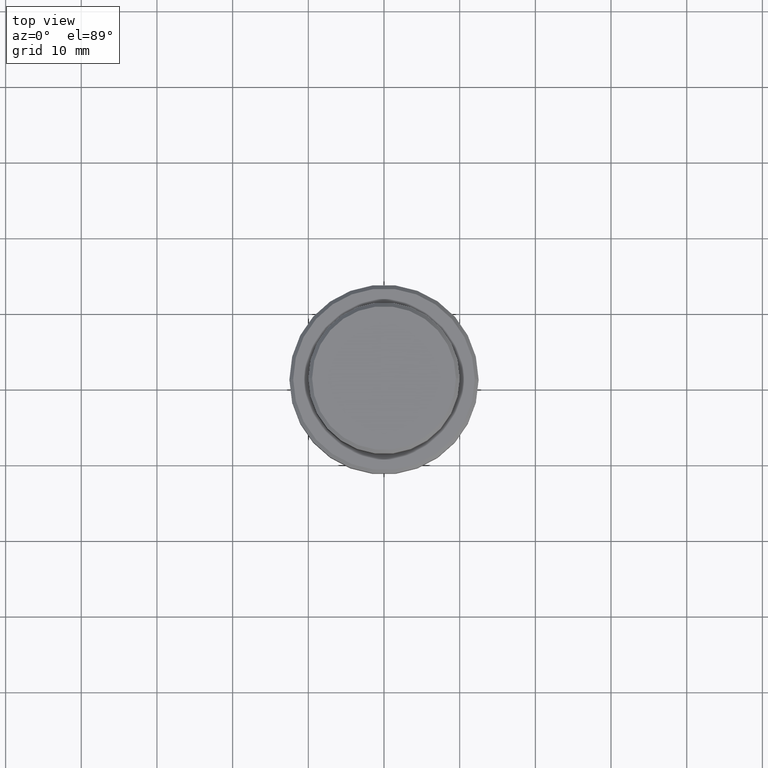
[diagram: clean part render]
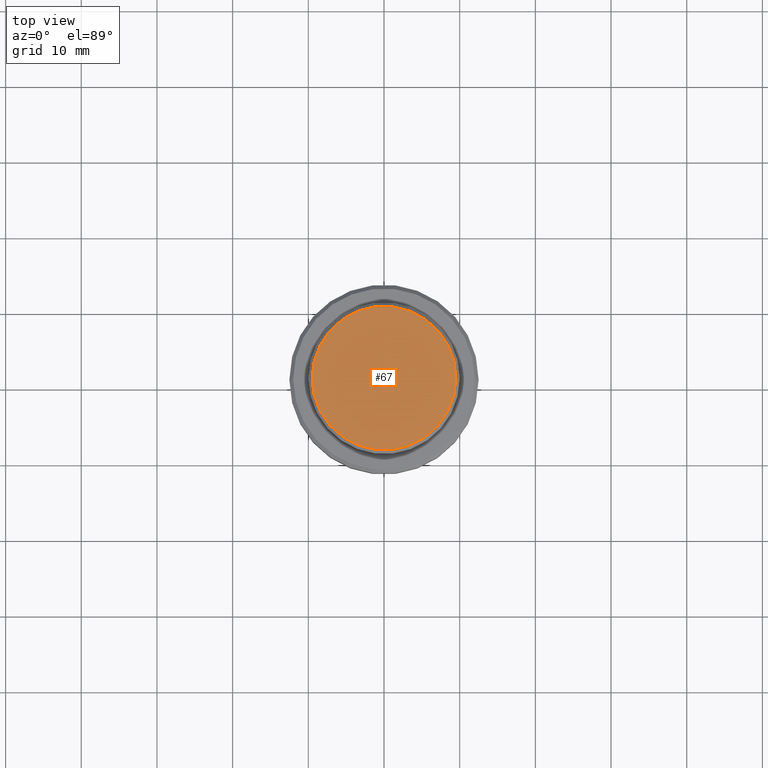
[diagram: same view with one face highlighted and labeled with its STEP entity id]
A machine part, top view. The second image highlights one B-rep face of the part: STEP entity #67.
In plain terms, the highlighted planar face has unit normal (0, -0, 1).
Its self-contained STEP definition (entity closure, byte-faithful):
#42 = CARTESIAN_POINT ( 'NONE',  ( 9.500000000000008882, 1.194030629168669864E-15, 0.000000000000000000 ) ) ;
#47 = EDGE_LOOP ( 'NONE', ( #1239, #975 ) ) ;
#67 = ADVANCED_FACE ( 'NONE', ( #1077 ), #526, .T. ) ;
#358 = DIRECTION ( 'NONE',  ( 1.000000000000000000, 0.000000000000000000, 0.000000000000000000 ) ) ;
#363 = CIRCLE ( 'NONE', #1054, 9.500000000000008882 ) ;
#423 = DIRECTION ( 'NONE',  ( 0.000000000000000000, -0.000000000000000000, 1.000000000000000000 ) ) ;
#464 = CARTESIAN_POINT ( 'NONE',  ( 0.000000000000000000, 0.000000000000000000, 0.000000000000000000 ) ) ;
#526 = PLANE ( 'NONE',  #971 ) ;
#580 = DIRECTION ( 'NONE',  ( -0.000000000000000000, -0.000000000000000000, 1.000000000000000000 ) ) ;
#630 = EDGE_CURVE ( 'NONE', #921, #652, #1274, .T. ) ;
#652 = VERTEX_POINT ( 'NONE', #42 ) ;
#748 = AXIS2_PLACEMENT_3D ( 'NONE', #1014, #998, #358 ) ;
#791 = DIRECTION ( 'NONE',  ( 1.000000000000000000, 0.000000000000000000, 0.000000000000000000 ) ) ;
#921 = VERTEX_POINT ( 'NONE', #1259 ) ;
#971 = AXIS2_PLACEMENT_3D ( 'NONE', #1400, #423, #1260 ) ;
#975 = ORIENTED_EDGE ( 'NONE', *, *, #1229, .T. ) ;
#998 = DIRECTION ( 'NONE',  ( -0.000000000000000000, -0.000000000000000000, 1.000000000000000000 ) ) ;
#1014 = CARTESIAN_POINT ( 'NONE',  ( 0.000000000000000000, 0.000000000000000000, 0.000000000000000000 ) ) ;
#1054 = AXIS2_PLACEMENT_3D ( 'NONE', #464, #580, #791 ) ;
#1077 = FACE_OUTER_BOUND ( 'NONE', #47, .T. ) ;
#1229 = EDGE_CURVE ( 'NONE', #652, #921, #363, .T. ) ;
#1239 = ORIENTED_EDGE ( 'NONE', *, *, #630, .T. ) ;
#1259 = CARTESIAN_POINT ( 'NONE',  ( -9.500000000000008882, 0.000000000000000000, 0.000000000000000000 ) ) ;
#1260 = DIRECTION ( 'NONE',  ( 1.000000000000000000, 0.000000000000000000, 0.000000000000000000 ) ) ;
#1274 = CIRCLE ( 'NONE', #748, 9.500000000000008882 ) ;
#1400 = CARTESIAN_POINT ( 'NONE',  ( 0.000000000000000000, 0.000000000000000000, 0.000000000000000000 ) ) ;